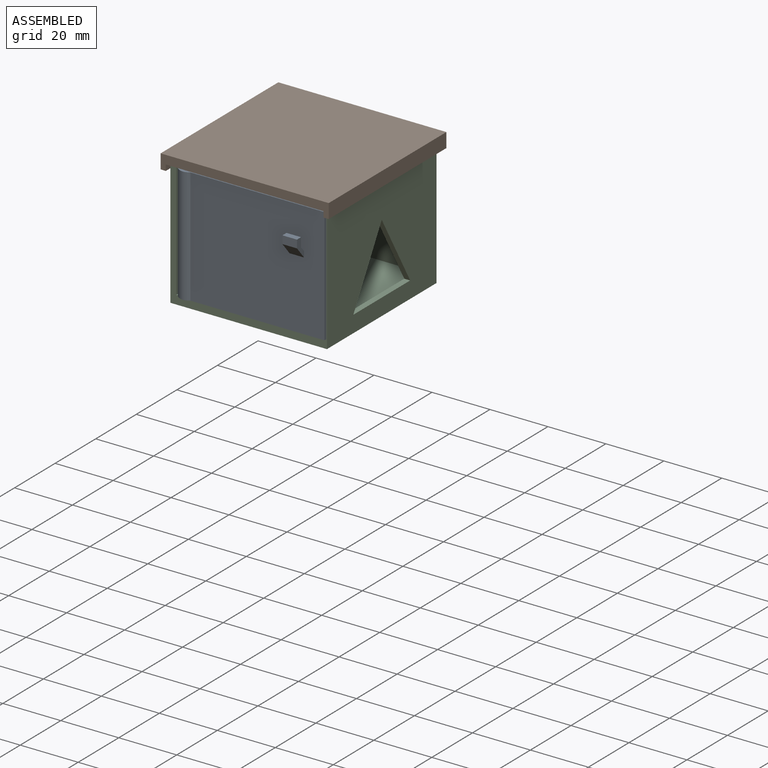
[diagram: assembled view]
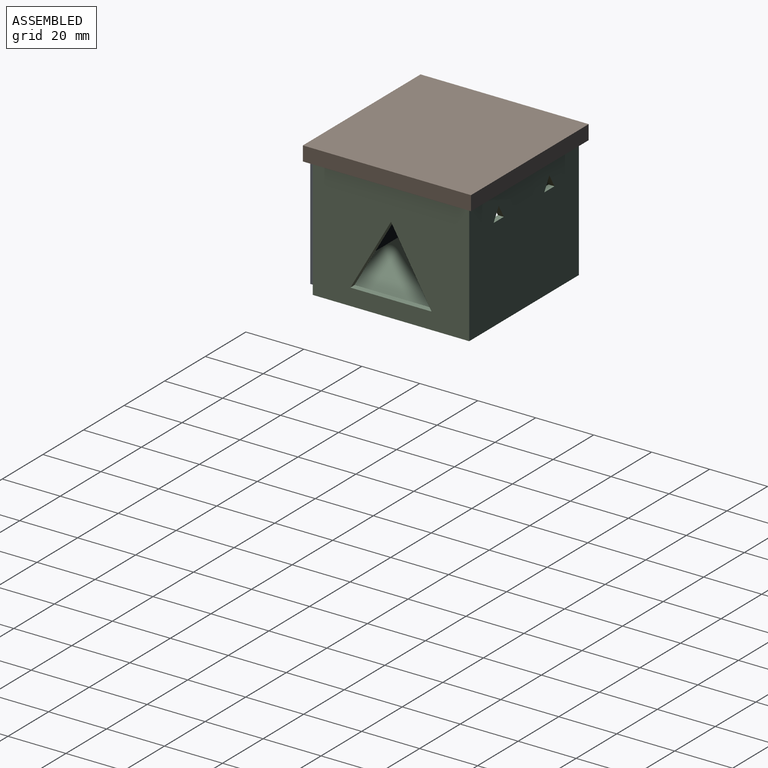
[diagram: assembled view, second angle]
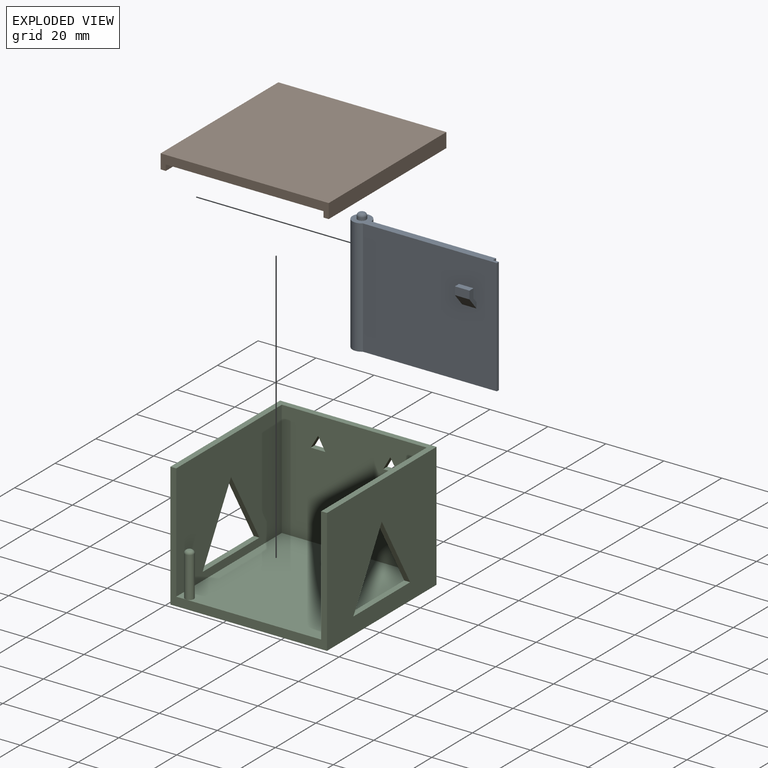
[diagram: exploded view]
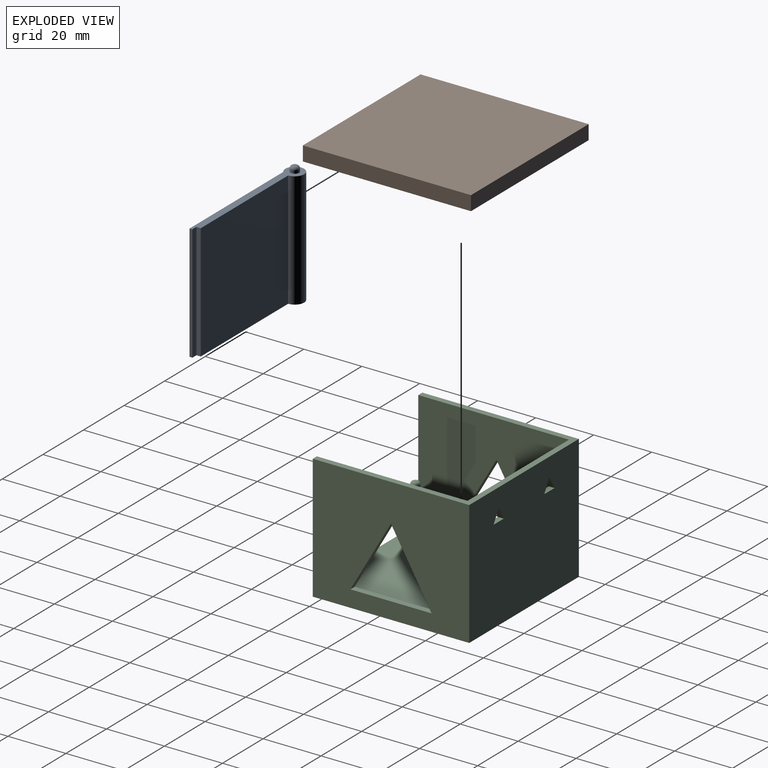
[diagram: exploded view, second angle]
ASSEMBLY  parts=3 mates=2
PART A: 20 faces, bbox 51.6x9.3x42 mm
  f0: plane 46.22x40mm, normal (0,-1,0), area 1838.9mm2, adj f4,f5,f6,f7,f10,f11,f12,f13
  f1: plane 40x2mm, normal (0,1,0), area 80mm2, adj f2,f5,f6,f7
  f2: plane 40x1.5mm, normal (1,0,0), area 60mm2, adj f1,f3,f6,f7
  f3: plane 43.05x40mm, normal (0,1,0), area 1722mm2, adj f2,f4,f6,f7
  f4: cylinder r=3.25mm len=40mm, axis (0,0,-1), area 702.7mm2, adj f0,f3,f6,f7
  f5: plane 40x1mm, normal (1,0,0), area 40mm2, adj f0,f1,f6,f7
  f6: plane 51.55x6.5mm, normal (0,0,1), area 136.6mm2, adj f0,f1,f2,f3,f4,f5,f17
  f7: plane 51.55x6.5mm, normal (0,0,-1), area 134.6mm2, adj f0,f1,f2,f3,f4,f5,f8
  f8: cylinder r=1.7mm len=20mm, axis (0,0,-1), area 213.6mm2, adj f7,f9
  f9: plane 3.4x3.4mm, normal (0,0,-1), area 9.1mm2, adj f8
  f10: plane 5x4.17mm, normal (0,-0.77,-0.64), area 27.2mm2, adj f0,f12,f13,f16
  f11: plane 5x1.79mm, normal (0,0.77,0.64), area 11.7mm2, adj f0,f12,f13,f14
  f12: plane 6.91x3.5mm, normal (-1,0,0), area 10.9mm2, adj f0,f10,f11,f14,f15,f16
  f13: plane 6.91x3.5mm, normal (1,0,0), area 10.9mm2, adj f0,f10,f11,f14,f15,f16
  f14: plane 5x3.12mm, normal (0,1,0), area 15.6mm2, adj f11,f12,f13,f15
  f15: plane 5x2mm, normal (0,0,1), area 10mm2, adj f12,f13,f14,f16
  f16: plane 5x2.74mm, normal (0,-1,0), area 13.7mm2, adj f10,f12,f13,f15
  f17: cylinder r=1.5mm len=3mm, axis (0,0,-1), area 9.4mm2, adj f6,f19
  f18: plane 1x1mm, normal (0,0,1), area 0.8mm2, adj f19
  f19: torus R=0.5mm, axis (0,0,1), area 11.2mm2, adj f17,f18
PART B: 12 faces, bbox 58x58x5 mm
  f0: plane 58x5mm, normal (0,-1,0), area 181.2mm2, adj f1,f3,f4,f5,f8,f10,f11
  f1: plane 58x5mm, normal (1,0,0), area 290mm2, adj f0,f2,f5,f11
  f2: plane 58x5mm, normal (0,1,0), area 290mm2, adj f1,f3,f5,f11
  f3: plane 58x5mm, normal (-1,0,0), area 290mm2, adj f0,f2,f5,f11
  f4: plane 56.2x54.4mm, normal (0,0,1), area 3048.7mm2, adj f0,f6,f8,f9,f10
  f5: plane 58x58mm, normal (0,0,-1), area 3364mm2, adj f0,f1,f2,f3
  f6: cylinder r=1.65mm len=3.3mm, axis (0,0,1), area 25.9mm2, adj f4,f7
  f7: plane 3.3x3.3mm, normal (0,0,1), area 8.6mm2, adj f6
  f8: plane 56.2x2mm, normal (1,0,0), area 112.4mm2, adj f0,f4,f9,f11
  f9: plane 54.4x2mm, normal (0,-1,0), area 108.8mm2, adj f4,f8,f10,f11
  f10: plane 56.2x2mm, normal (-1,0,0), area 112.4mm2, adj f0,f4,f9,f11
  f11: plane 58x58mm, normal (0,0,1), area 306.7mm2, adj f0,f1,f2,f3,f8,f9,f10
PART C: 27 faces, bbox 54x54x43 mm
  f0: plane 54x43mm, normal (0,-1,0), area 322mm2, adj f1,f3,f4,f5,f6,f8,f9
  f1: plane 54x43mm, normal (1,0,0), area 1982.5mm2, adj f0,f2,f4,f8,f13,f14,f15
  f2: plane 54x43mm, normal (0,1,0), area 2300.2mm2, adj f1,f3,f4,f8,f17,f18,f19,f20
  f3: plane 54x43mm, normal (-1,0,0), area 1982.5mm2, adj f0,f2,f4,f8,f10,f11,f12
  f4: plane 54x54mm, normal (0,0,-1), area 2837.5mm2, adj f0,f1,f2,f3,f16
  f5: plane 52x40mm, normal (-1,0,0), area 1740.5mm2, adj f0,f7,f8,f9,f13,f14,f15
  f6: plane 52x40mm, normal (1,0,0), area 1740.5mm2, adj f0,f7,f8,f9,f10,f11,f12
  f7: plane 50x40mm, normal (0,-1,0), area 1978.2mm2, adj f5,f6,f8,f9,f17,f18,f19,f20
  f8: plane 54x54mm, normal (0,0,1), area 316mm2, adj f0,f1,f2,f3,f5,f6,f7
  f9: plane 52x50mm, normal (0,0,1), area 2479.8mm2, adj f0,f5,f6,f7,f23,f26
  f10: plane 24.25x14mm, normal (0,0.87,-0.5), area 56mm2, adj f3,f6,f11,f12
  f11: plane 28x2mm, normal (0,0,1), area 56mm2, adj f3,f6,f10,f12
  f12: plane 24.25x14mm, normal (0,-0.87,-0.5), area 56mm2, adj f3,f6,f10,f11
  f13: plane 24.25x14mm, normal (0,-0.87,-0.5), area 56mm2, adj f1,f5,f14,f15
  f14: plane 28x2mm, normal (0,0,1), area 56mm2, adj f1,f5,f13,f15
  f15: plane 24.25x14mm, normal (0,0.87,-0.5), area 56mm2, adj f1,f5,f13,f14
  f16: cylinder r=5mm len=10mm, axis (0,0,1), area 62.8mm2, adj f4,f26
  f17: plane 4.36x2.55mm, normal (0.86,0,-0.5), area 10.1mm2, adj f2,f7,f18,f19
  f18: plane 4.36x2.45mm, normal (-0.87,0,-0.49), area 10mm2, adj f2,f7,f17,f19
  f19: plane 5x2mm, normal (0,0,1), area 10mm2, adj f2,f7,f17,f18
  f20: plane 4.36x2.45mm, normal (0.87,0,-0.49), area 10mm2, adj f2,f7,f21,f22
  f21: plane 4.36x2.55mm, normal (-0.86,0,-0.5), area 10.1mm2, adj f2,f7,f20,f22
  f22: plane 5x2mm, normal (0,0,1), area 10mm2, adj f2,f7,f20,f21
  f23: cylinder r=1.5mm len=14mm, axis (0,0,-1), area 131.9mm2, adj f9,f25
  f24: plane 1x1mm, normal (0,0,1), area 0.8mm2, adj f25
  f25: torus R=0.5mm, axis (0,0,1), area 11.2mm2, adj f23,f24
  f26: torus R=6mm, axis (0,0,1), area 52.9mm2, adj f9,f16
PLACE A rot(axis=(-0.15,-0.95,-0.28),0deg) t=(-51.83,-19.71,-12.54)mm
PLACE B rot(axis=(0,1,0),180deg) t=(-30.33,5.79,31.22)mm
PLACE C rot(axis=(-0.15,-0.95,-0.28),0deg) t=(-30.33,5.79,-15.61)mm
MATE slider B.f6 <-> A.f17  axis (0,0,-1) through (-51.83,-19.71,28.22)mm
MATE slider A.f8 <-> C.f23  axis (0,0,-1) through (-51.83,-19.71,-12.54)mm
